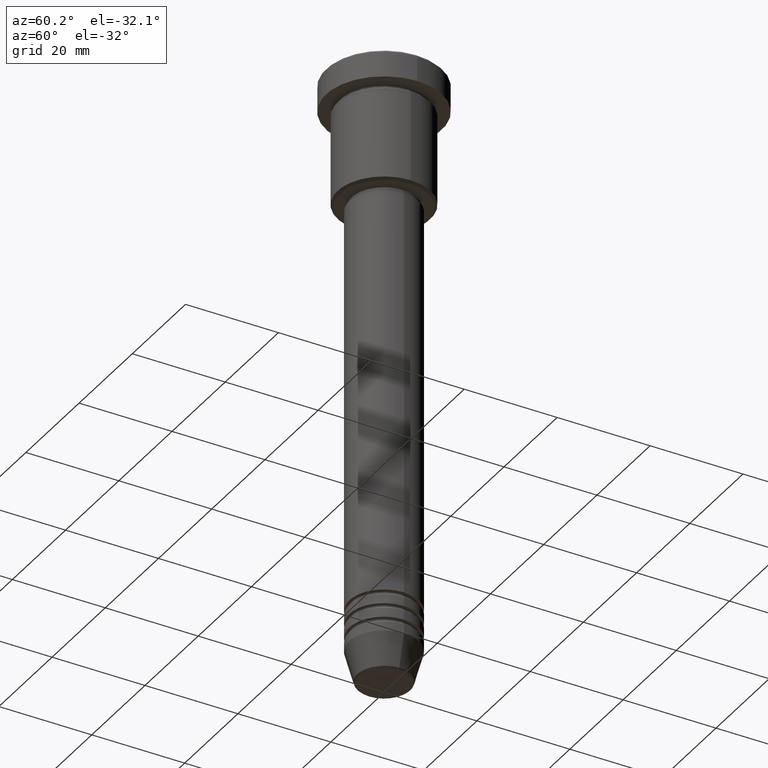
[diagram: clean part render]
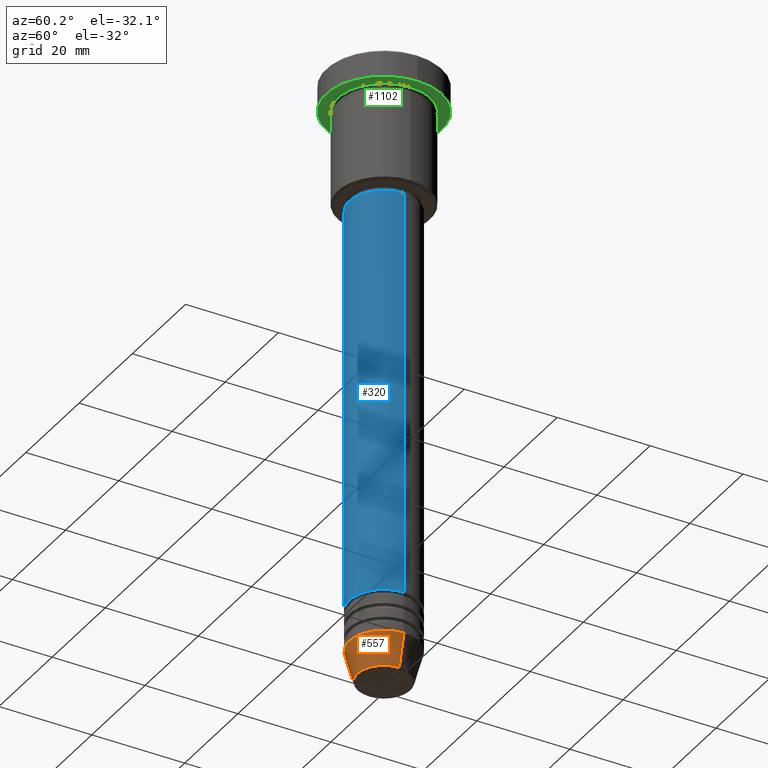
[diagram: same view with three faces highlighted in distinct colors, each labeled with its STEP entity id]
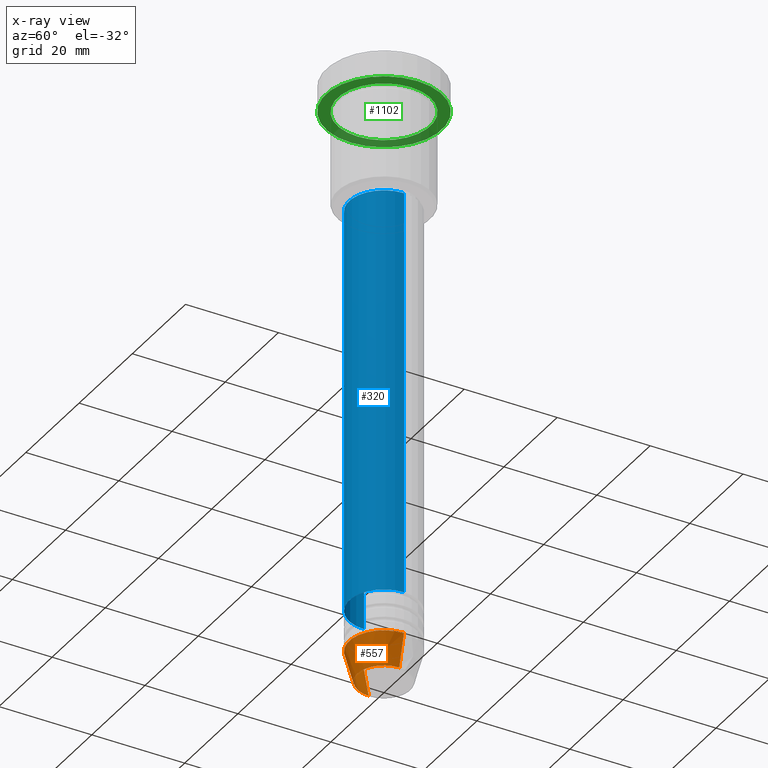
[diagram: x-ray of the same camera — body ghosted, the three highlighted faces saturated]
A machine part, auxiliary view with three faces highlighted in distinct colors.
The next image is the same camera in x-ray (body ghosted, the three faces saturated) — at least one of them is partly hidden behind the body in this view.
Their STEP definitions:

[orange] entity #557 — the highlighted conical surface has half-angle 15 deg.
#65 = CARTESIAN_POINT ( 'NONE',  ( 0.000000000000000000, 0.000000000000000000, -125.0000000000000000 ) ) ;
#116 = ORIENTED_EDGE ( 'NONE', *, *, #994, .T. ) ;
#226 = CARTESIAN_POINT ( 'NONE',  ( -5.723655072137191269, 8.097153428560735915E-16, -131.6294095225512422 ) ) ;
#234 = CONICAL_SURFACE ( 'NONE', #386, 7.500000000000000000, 0.2617993877991500740 ) ;
#237 = CIRCLE ( 'NONE', #784, 7.500000000000000000 ) ;
#254 = CARTESIAN_POINT ( 'NONE',  ( 0.000000000000000000, 0.000000000000000000, -125.0000000000000000 ) ) ;
#291 = ORIENTED_EDGE ( 'NONE', *, *, #816, .T. ) ;
#348 = LINE ( 'NONE', #631, #629 ) ;
#358 = VERTEX_POINT ( 'NONE', #226 ) ;
#370 = AXIS2_PLACEMENT_3D ( 'NONE', #835, #639, #564 ) ;
#386 = AXIS2_PLACEMENT_3D ( 'NONE', #65, #588, #502 ) ;
#413 = VERTEX_POINT ( 'NONE', #1155 ) ;
#425 = ORIENTED_EDGE ( 'NONE', *, *, #1120, .F. ) ;
#502 = DIRECTION ( 'NONE',  ( 1.000000000000000000, 0.000000000000000000, 0.000000000000000000 ) ) ;
#525 = DIRECTION ( 'NONE',  ( -0.2588190451025213501, 3.169619151431772337E-17, 0.9659258262890680902 ) ) ;
#557 = ADVANCED_FACE ( 'NONE', ( #872 ), #234, .T. ) ;
#559 = CARTESIAN_POINT ( 'NONE',  ( 5.723655072137191269, 0.000000000000000000, -131.6294095225512422 ) ) ;
#564 = DIRECTION ( 'NONE',  ( 1.000000000000000000, 0.000000000000000000, 0.000000000000000000 ) ) ;
#588 = DIRECTION ( 'NONE',  ( -0.000000000000000000, -0.000000000000000000, 1.000000000000000000 ) ) ;
#605 = CARTESIAN_POINT ( 'NONE',  ( 7.500000000000000000, 0.000000000000000000, -125.0000000000000000 ) ) ;
#629 = VECTOR ( 'NONE', #525, 1000.000000000000000 ) ;
#631 = CARTESIAN_POINT ( 'NONE',  ( -7.500000000000000000, 9.184850993605147944E-16, -125.0000000000000000 ) ) ;
#639 = DIRECTION ( 'NONE',  ( -0.000000000000000000, -0.000000000000000000, 1.000000000000000000 ) ) ;
#671 = DIRECTION ( 'NONE',  ( 0.2588190451025213501, 0.000000000000000000, 0.9659258262890680902 ) ) ;
#681 = EDGE_LOOP ( 'NONE', ( #1061, #291, #116, #425 ) ) ;
#784 = AXIS2_PLACEMENT_3D ( 'NONE', #254, #1081, #1162 ) ;
#816 = EDGE_CURVE ( 'NONE', #358, #858, #1014, .T. ) ;
#835 = CARTESIAN_POINT ( 'NONE',  ( 0.000000000000000000, 0.000000000000000000, -131.6294095225512422 ) ) ;
#858 = VERTEX_POINT ( 'NONE', #559 ) ;
#872 = FACE_OUTER_BOUND ( 'NONE', #681, .T. ) ;
#875 = LINE ( 'NONE', #605, #1169 ) ;
#938 = VERTEX_POINT ( 'NONE', #1138 ) ;
#994 = EDGE_CURVE ( 'NONE', #858, #413, #875, .T. ) ;
#1014 = CIRCLE ( 'NONE', #370, 5.723655072137191269 ) ;
#1061 = ORIENTED_EDGE ( 'NONE', *, *, #1142, .F. ) ;
#1081 = DIRECTION ( 'NONE',  ( -0.000000000000000000, -0.000000000000000000, 1.000000000000000000 ) ) ;
#1120 = EDGE_CURVE ( 'NONE', #938, #413, #237, .T. ) ;
#1138 = CARTESIAN_POINT ( 'NONE',  ( -7.500000000000000000, 9.184850993605147944E-16, -125.0000000000000000 ) ) ;
#1142 = EDGE_CURVE ( 'NONE', #358, #938, #348, .T. ) ;
#1155 = CARTESIAN_POINT ( 'NONE',  ( 7.500000000000000000, 0.000000000000000000, -125.0000000000000000 ) ) ;
#1162 = DIRECTION ( 'NONE',  ( 1.000000000000000000, 0.000000000000000000, 0.000000000000000000 ) ) ;
#1169 = VECTOR ( 'NONE', #671, 1000.000000000000000 ) ;

[blue] entity #320 — the highlighted cylindrical surface (partial cylindrical patch) has radius 7.5 mm, axis along (-0, -0, 1).
#26 = DIRECTION ( 'NONE',  ( -0.000000000000000000, -0.000000000000000000, 1.000000000000000000 ) ) ;
#32 = EDGE_CURVE ( 'NONE', #767, #326, #454, .T. ) ;
#81 = LINE ( 'NONE', #166, #533 ) ;
#99 = CIRCLE ( 'NONE', #819, 7.500000000000000000 ) ;
#165 = EDGE_CURVE ( 'NONE', #326, #225, #99, .T. ) ;
#166 = CARTESIAN_POINT ( 'NONE',  ( 7.500000000000000000, 0.000000000000000000, 0.000000000000000000 ) ) ;
#177 = ORIENTED_EDGE ( 'NONE', *, *, #32, .F. ) ;
#225 = VERTEX_POINT ( 'NONE', #658 ) ;
#230 = DIRECTION ( 'NONE',  ( 1.000000000000000000, 0.000000000000000000, 0.000000000000000000 ) ) ;
#308 = FACE_OUTER_BOUND ( 'NONE', #373, .T. ) ;
#311 = AXIS2_PLACEMENT_3D ( 'NONE', #1042, #561, #387 ) ;
#320 = ADVANCED_FACE ( 'NONE', ( #308 ), #573, .T. ) ;
#326 = VERTEX_POINT ( 'NONE', #944 ) ;
#373 = EDGE_LOOP ( 'NONE', ( #177, #380, #961, #470 ) ) ;
#380 = ORIENTED_EDGE ( 'NONE', *, *, #442, .T. ) ;
#387 = DIRECTION ( 'NONE',  ( 1.000000000000000000, 0.000000000000000000, 0.000000000000000000 ) ) ;
#398 = CARTESIAN_POINT ( 'NONE',  ( -7.500000000000000000, 9.184850993605147944E-16, -115.9999999999999574 ) ) ;
#401 = AXIS2_PLACEMENT_3D ( 'NONE', #607, #1072, #230 ) ;
#442 = EDGE_CURVE ( 'NONE', #767, #625, #782, .T. ) ;
#454 = LINE ( 'NONE', #627, #609 ) ;
#470 = ORIENTED_EDGE ( 'NONE', *, *, #165, .F. ) ;
#533 = VECTOR ( 'NONE', #733, 1000.000000000000000 ) ;
#561 = DIRECTION ( 'NONE',  ( -0.000000000000000000, -0.000000000000000000, 1.000000000000000000 ) ) ;
#573 = CYLINDRICAL_SURFACE ( 'NONE', #311, 7.500000000000000000 ) ;
#594 = EDGE_CURVE ( 'NONE', #625, #225, #81, .T. ) ;
#607 = CARTESIAN_POINT ( 'NONE',  ( 0.000000000000000000, 0.000000000000000000, -115.9999999999999574 ) ) ;
#609 = VECTOR ( 'NONE', #727, 1000.000000000000000 ) ;
#625 = VERTEX_POINT ( 'NONE', #716 ) ;
#627 = CARTESIAN_POINT ( 'NONE',  ( -7.500000000000000000, 9.184850993605147944E-16, 0.000000000000000000 ) ) ;
#638 = CARTESIAN_POINT ( 'NONE',  ( 0.000000000000000000, 0.000000000000000000, -28.00000000000000355 ) ) ;
#658 = CARTESIAN_POINT ( 'NONE',  ( 7.500000000000000000, 0.000000000000000000, -28.00000000000000355 ) ) ;
#716 = CARTESIAN_POINT ( 'NONE',  ( 7.500000000000000000, 0.000000000000000000, -115.9999999999999574 ) ) ;
#727 = DIRECTION ( 'NONE',  ( -0.000000000000000000, -0.000000000000000000, 1.000000000000000000 ) ) ;
#733 = DIRECTION ( 'NONE',  ( -0.000000000000000000, -0.000000000000000000, 1.000000000000000000 ) ) ;
#767 = VERTEX_POINT ( 'NONE', #398 ) ;
#782 = CIRCLE ( 'NONE', #401, 7.500000000000000000 ) ;
#819 = AXIS2_PLACEMENT_3D ( 'NONE', #638, #26, #959 ) ;
#944 = CARTESIAN_POINT ( 'NONE',  ( -7.500000000000000000, 9.184850993605147944E-16, -28.00000000000000355 ) ) ;
#959 = DIRECTION ( 'NONE',  ( 1.000000000000000000, 0.000000000000000000, 0.000000000000000000 ) ) ;
#961 = ORIENTED_EDGE ( 'NONE', *, *, #594, .T. ) ;
#1042 = CARTESIAN_POINT ( 'NONE',  ( 0.000000000000000000, 0.000000000000000000, 0.000000000000000000 ) ) ;
#1072 = DIRECTION ( 'NONE',  ( -0.000000000000000000, -0.000000000000000000, 1.000000000000000000 ) ) ;

[green] entity #1102 — the highlighted planar face has unit normal (0, 0, -1).
#27 = CARTESIAN_POINT ( 'NONE',  ( 0.000000000000000000, 0.000000000000000000, -5.999999999999996447 ) ) ;
#38 = EDGE_LOOP ( 'NONE', ( #696, #144 ) ) ;
#75 = CARTESIAN_POINT ( 'NONE',  ( -12.50000000000000000, 1.530808498934191521E-15, -5.999999999999996447 ) ) ;
#85 = CARTESIAN_POINT ( 'NONE',  ( 0.000000000000000000, 12.50000000000000000, -5.999999999999996447 ) ) ;
#106 = VERTEX_POINT ( 'NONE', #356 ) ;
#144 = ORIENTED_EDGE ( 'NONE', *, *, #619, .T. ) ;
#170 = DIRECTION ( 'NONE',  ( -1.000000000000000000, 0.000000000000000000, 0.000000000000000000 ) ) ;
#174 = CARTESIAN_POINT ( 'NONE',  ( 0.000000000000000000, 0.000000000000000000, -5.999999999999996447 ) ) ;
#178 = CIRCLE ( 'NONE', #669, 12.50000000000000000 ) ;
#261 = FACE_BOUND ( 'NONE', #38, .T. ) ;
#277 = AXIS2_PLACEMENT_3D ( 'NONE', #174, #998, #902 ) ;
#289 = DIRECTION ( 'NONE',  ( -1.000000000000000000, 0.000000000000000000, 0.000000000000000000 ) ) ;
#297 = CARTESIAN_POINT ( 'NONE',  ( 10.00000000000000000, 1.224646799147353256E-15, -5.999999999999996447 ) ) ;
#315 = ORIENTED_EDGE ( 'NONE', *, *, #1163, .F. ) ;
#349 = CIRCLE ( 'NONE', #802, 10.00000000000000000 ) ;
#356 = CARTESIAN_POINT ( 'NONE',  ( 12.50000000000000000, 0.000000000000000000, -5.999999999999996447 ) ) ;
#362 = DIRECTION ( 'NONE',  ( -0.000000000000000000, -0.000000000000000000, 1.000000000000000000 ) ) ;
#391 = DIRECTION ( 'NONE',  ( -0.000000000000000000, -0.000000000000000000, 1.000000000000000000 ) ) ;
#497 = AXIS2_PLACEMENT_3D ( 'NONE', #1178, #362, #170 ) ;
#527 = CARTESIAN_POINT ( 'NONE',  ( 0.000000000000000000, 0.000000000000000000, -5.999999999999996447 ) ) ;
#536 = CIRCLE ( 'NONE', #277, 12.50000000000000000 ) ;
#619 = EDGE_CURVE ( 'NONE', #722, #1090, #705, .T. ) ;
#621 = VERTEX_POINT ( 'NONE', #75 ) ;
#651 = EDGE_CURVE ( 'NONE', #621, #106, #178, .T. ) ;
#669 = AXIS2_PLACEMENT_3D ( 'NONE', #527, #909, #897 ) ;
#670 = AXIS2_PLACEMENT_3D ( 'NONE', #85, #1171, #1002 ) ;
#696 = ORIENTED_EDGE ( 'NONE', *, *, #763, .T. ) ;
#705 = CIRCLE ( 'NONE', #497, 10.00000000000000000 ) ;
#722 = VERTEX_POINT ( 'NONE', #297 ) ;
#763 = EDGE_CURVE ( 'NONE', #1090, #722, #349, .T. ) ;
#802 = AXIS2_PLACEMENT_3D ( 'NONE', #27, #391, #289 ) ;
#804 = CARTESIAN_POINT ( 'NONE',  ( -10.00000000000000000, 0.000000000000000000, -5.999999999999996447 ) ) ;
#813 = PLANE ( 'NONE',  #670 ) ;
#818 = ORIENTED_EDGE ( 'NONE', *, *, #651, .F. ) ;
#897 = DIRECTION ( 'NONE',  ( 1.000000000000000000, 0.000000000000000000, 0.000000000000000000 ) ) ;
#902 = DIRECTION ( 'NONE',  ( 1.000000000000000000, 0.000000000000000000, 0.000000000000000000 ) ) ;
#909 = DIRECTION ( 'NONE',  ( -0.000000000000000000, -0.000000000000000000, 1.000000000000000000 ) ) ;
#985 = FACE_OUTER_BOUND ( 'NONE', #992, .T. ) ;
#992 = EDGE_LOOP ( 'NONE', ( #315, #818 ) ) ;
#998 = DIRECTION ( 'NONE',  ( -0.000000000000000000, -0.000000000000000000, 1.000000000000000000 ) ) ;
#1002 = DIRECTION ( 'NONE',  ( -1.000000000000000000, 0.000000000000000000, -0.000000000000000000 ) ) ;
#1090 = VERTEX_POINT ( 'NONE', #804 ) ;
#1102 = ADVANCED_FACE ( 'NONE', ( #261, #985 ), #813, .T. ) ;
#1163 = EDGE_CURVE ( 'NONE', #106, #621, #536, .T. ) ;
#1171 = DIRECTION ( 'NONE',  ( 0.000000000000000000, 0.000000000000000000, -1.000000000000000000 ) ) ;
#1178 = CARTESIAN_POINT ( 'NONE',  ( 0.000000000000000000, 0.000000000000000000, -5.999999999999996447 ) ) ;